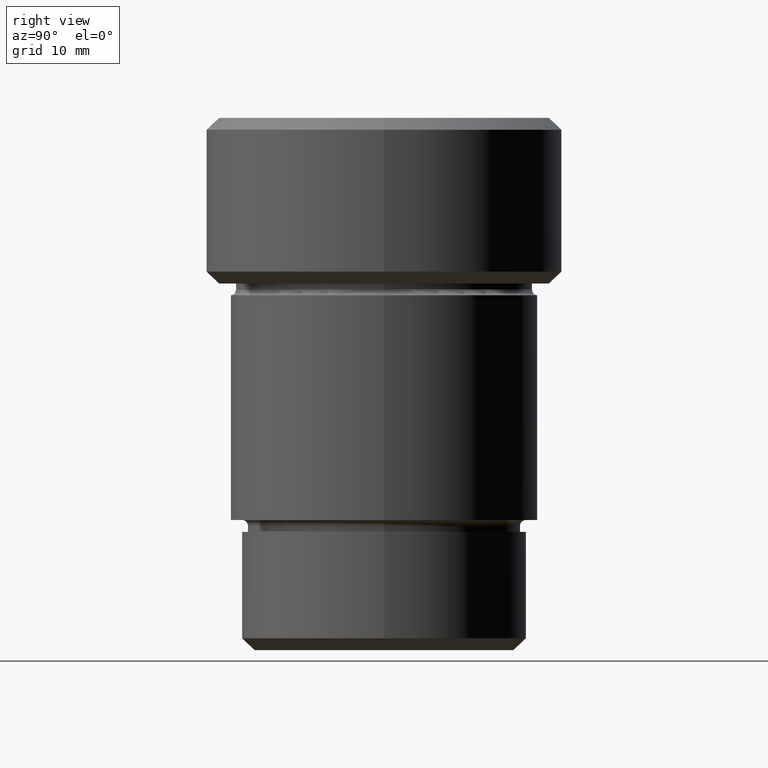
[diagram: clean part render]
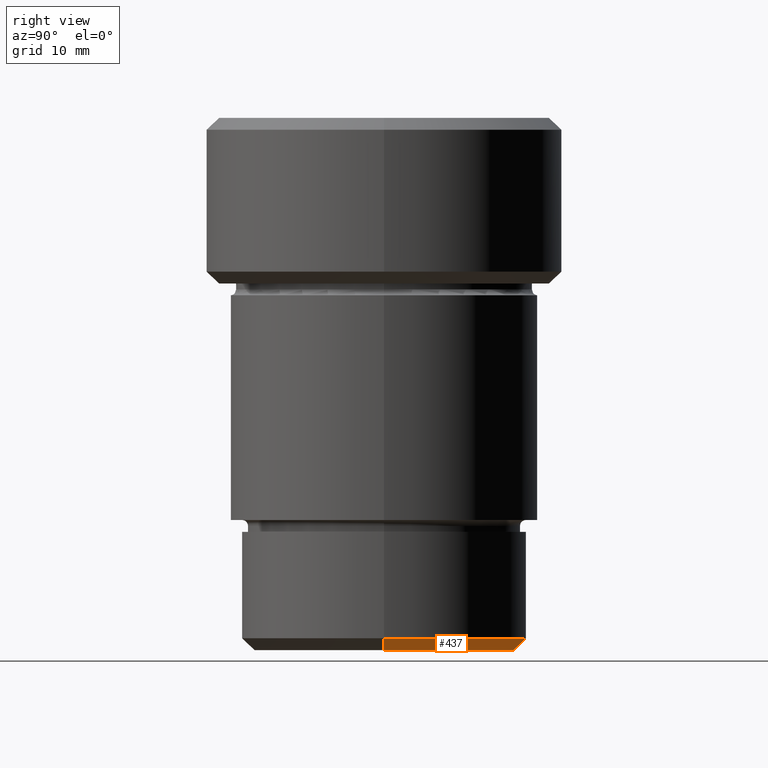
[diagram: same view with one face highlighted and labeled with its STEP entity id]
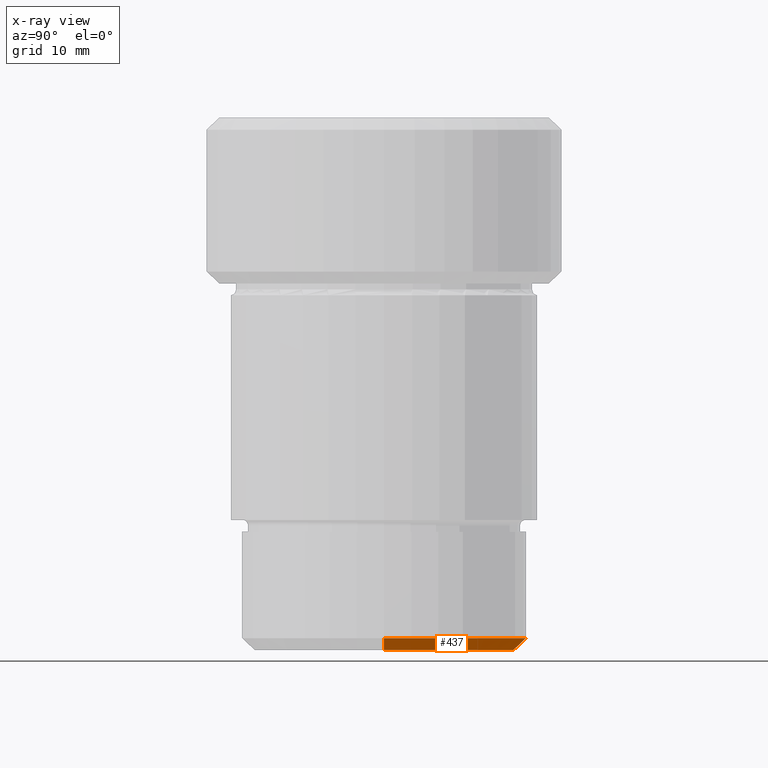
[diagram: x-ray of the same camera — body ghosted, the highlighted face saturated]
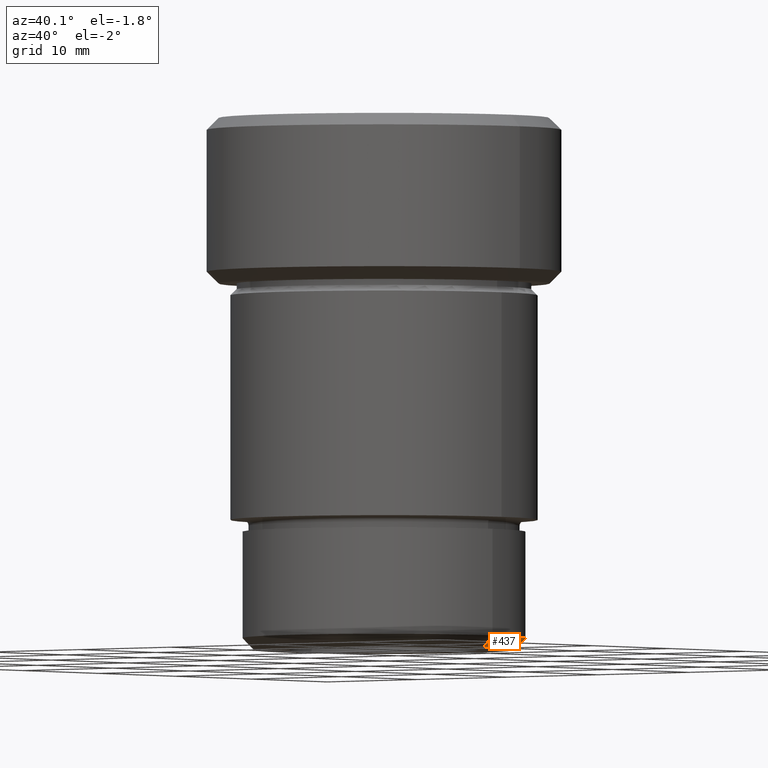
[diagram: same view with one face highlighted and labeled with its STEP entity id]
A machine part, right view. The second image highlights one B-rep face of the part: STEP entity #437.
The next image is the same camera in x-ray: the body ghosted, the highlighted face saturated — about 0% of this face is hidden behind the body in this view.
A second angle (auxiliary view) of the same face is appended — the face is thin or edge-on in the first view.
In plain terms, the highlighted conical surface has half-angle 45 deg.
Its self-contained STEP definition (entity closure, byte-faithful):
#24 = DIRECTION ( 'NONE',  ( -0.000000000000000000, -0.000000000000000000, 1.000000000000000000 ) ) ;
#27 = ORIENTED_EDGE ( 'NONE', *, *, #712, .T. ) ;
#52 = DIRECTION ( 'NONE',  ( 1.000000000000000000, 0.000000000000000000, 0.000000000000000000 ) ) ;
#73 = AXIS2_PLACEMENT_3D ( 'NONE', #600, #415, #112 ) ;
#112 = DIRECTION ( 'NONE',  ( -1.000000000000000000, 0.000000000000000000, 0.000000000000000000 ) ) ;
#143 = VERTEX_POINT ( 'NONE', #452 ) ;
#181 = ORIENTED_EDGE ( 'NONE', *, *, #777, .F. ) ;
#218 = VECTOR ( 'NONE', #780, 1000.000000000000000 ) ;
#241 = VERTEX_POINT ( 'NONE', #746 ) ;
#272 = DIRECTION ( 'NONE',  ( -1.000000000000000000, 0.000000000000000000, 0.000000000000000000 ) ) ;
#274 = ORIENTED_EDGE ( 'NONE', *, *, #572, .F. ) ;
#285 = CARTESIAN_POINT ( 'NONE',  ( -12.00000000000000000, 1.469576158976823947E-15, -44.00000000000000711 ) ) ;
#351 = CIRCLE ( 'NONE', #707, 12.00000000000000000 ) ;
#355 = CARTESIAN_POINT ( 'NONE',  ( 0.000000000000000000, 0.000000000000000000, -44.00000000000000711 ) ) ;
#405 = CARTESIAN_POINT ( 'NONE',  ( -10.99999999999999645, 1.408343819019455979E-15, -45.00000000000000000 ) ) ;
#410 = DIRECTION ( 'NONE',  ( 0.7071067811865512365, 0.000000000000000000, 0.7071067811865439090 ) ) ;
#415 = DIRECTION ( 'NONE',  ( 0.000000000000000000, 0.000000000000000000, -1.000000000000000000 ) ) ;
#437 = ADVANCED_FACE ( 'NONE', ( #468 ), #622, .T. ) ;
#450 = ORIENTED_EDGE ( 'NONE', *, *, #476, .F. ) ;
#452 = CARTESIAN_POINT ( 'NONE',  ( -12.00000000000000000, 1.469576158976823947E-15, -44.00000000000000711 ) ) ;
#457 = LINE ( 'NONE', #659, #528 ) ;
#468 = FACE_OUTER_BOUND ( 'NONE', #601, .T. ) ;
#476 = EDGE_CURVE ( 'NONE', #241, #143, #351, .T. ) ;
#480 = CIRCLE ( 'NONE', #73, 10.99999999999999645 ) ;
#528 = VECTOR ( 'NONE', #410, 1000.000000000000000 ) ;
#546 = CARTESIAN_POINT ( 'NONE',  ( 10.99999999999999645, 0.000000000000000000, -45.00000000000000000 ) ) ;
#572 = EDGE_CURVE ( 'NONE', #757, #241, #457, .T. ) ;
#598 = DIRECTION ( 'NONE',  ( -0.000000000000000000, -0.000000000000000000, 1.000000000000000000 ) ) ;
#600 = CARTESIAN_POINT ( 'NONE',  ( 0.000000000000000000, 0.000000000000000000, -45.00000000000000000 ) ) ;
#601 = EDGE_LOOP ( 'NONE', ( #181, #27, #450, #274 ) ) ;
#622 = CONICAL_SURFACE ( 'NONE', #764, 12.00000000000000000, 0.7853981633974533860 ) ;
#627 = CARTESIAN_POINT ( 'NONE',  ( 0.000000000000000000, 0.000000000000000000, -44.00000000000000711 ) ) ;
#641 = LINE ( 'NONE', #285, #218 ) ;
#648 = VERTEX_POINT ( 'NONE', #405 ) ;
#659 = CARTESIAN_POINT ( 'NONE',  ( 12.00000000000000000, 0.000000000000000000, -44.00000000000000711 ) ) ;
#707 = AXIS2_PLACEMENT_3D ( 'NONE', #627, #24, #272 ) ;
#712 = EDGE_CURVE ( 'NONE', #648, #143, #641, .T. ) ;
#746 = CARTESIAN_POINT ( 'NONE',  ( 12.00000000000000000, 0.000000000000000000, -44.00000000000000711 ) ) ;
#757 = VERTEX_POINT ( 'NONE', #546 ) ;
#764 = AXIS2_PLACEMENT_3D ( 'NONE', #355, #598, #52 ) ;
#777 = EDGE_CURVE ( 'NONE', #648, #757, #480, .T. ) ;
#780 = DIRECTION ( 'NONE',  ( -0.7071067811865512365, 8.659560562354978464E-17, 0.7071067811865439090 ) ) ;